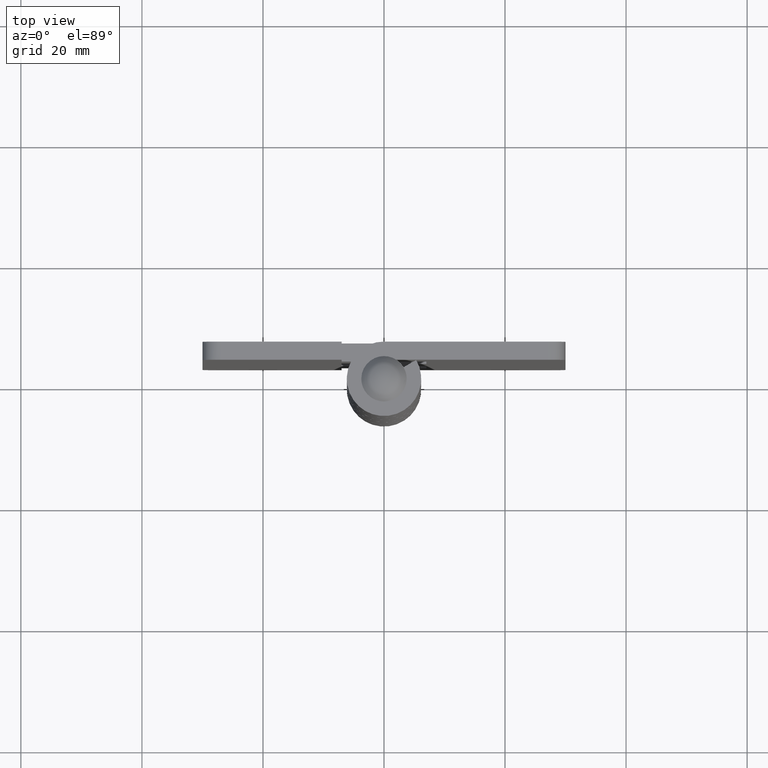
[diagram: clean part render]
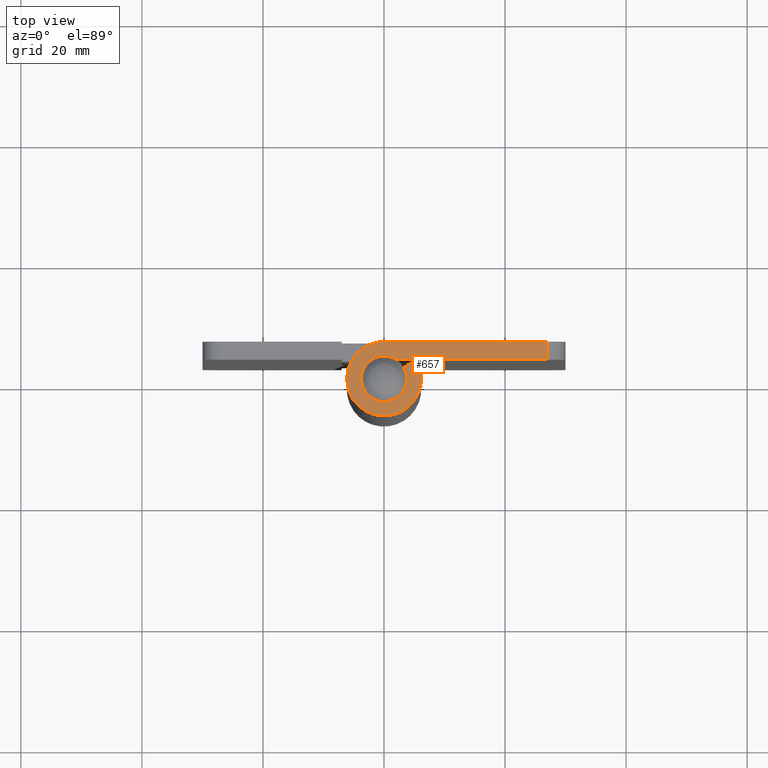
[diagram: same view with one face highlighted and labeled with its STEP entity id]
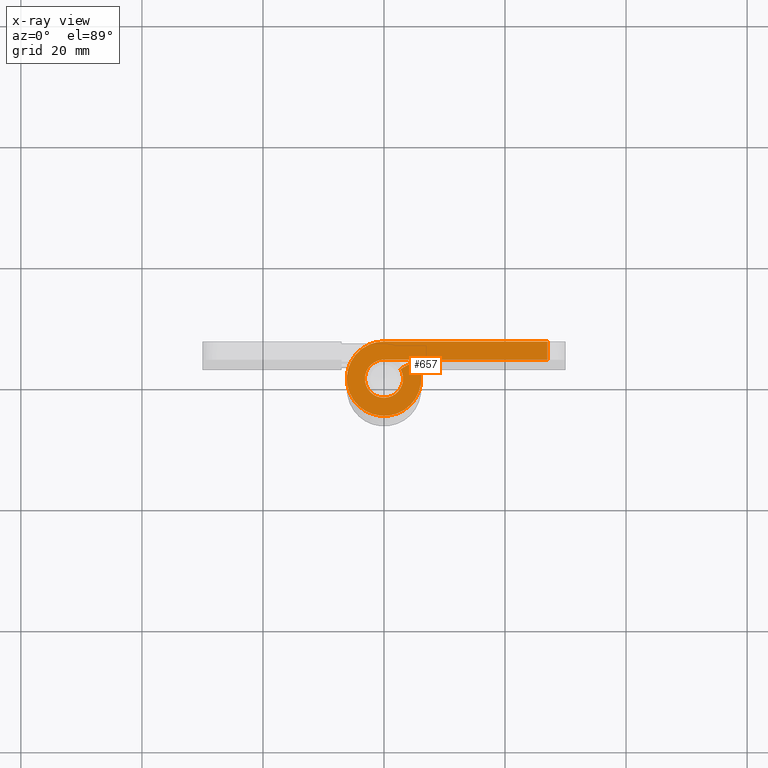
[diagram: x-ray of the same camera — body ghosted, the highlighted face saturated]
A machine part, top view. The second image highlights one B-rep face of the part: STEP entity #657.
The next image is the same camera in x-ray: the body ghosted, the highlighted face saturated — about 0% of this face is hidden behind the body in this view.
In plain terms, the highlighted face is a freeform B-spline surface patch.
Its self-contained STEP definition (entity closure, byte-faithful):
#58=CARTESIAN_POINT('',(27.0,6.150000000000000,100.0));
#59=VERTEX_POINT('',#58);
#75=CARTESIAN_POINT('',(27.0,3.150000000000000,100.0));
#76=VERTEX_POINT('',#75);
#77=CARTESIAN_POINT('',(27.0,3.150000000000000,100.0));
#78=CARTESIAN_POINT('',(27.0,6.150000000000000,100.0));
#79=QUASI_UNIFORM_CURVE('',1,(#77,#78),.UNSPECIFIED.,.F.,.U.);
#80=EDGE_CURVE('',#76,#59,#79,.T.);
#588=CARTESIAN_POINT('',(-7.805836071945194,-6.764359551898273,100.0));
#589=CARTESIAN_POINT('',(28.655843022151359,-6.764359551898273,100.0));
#590=CARTESIAN_POINT('',(-7.805836071945194,6.764384096545254,100.0));
#591=CARTESIAN_POINT('',(28.655843022151359,6.764384096545254,100.0));
#592=B_SPLINE_SURFACE_WITH_KNOTS('',1,1,((#588,#590),(#589,#591)),.UNSPECIFIED.,.F.,.F.,.U.,(2,2),(2,2),(0.0,36.461679094096553),(0.0,13.528743648443530),.UNSPECIFIED.);
#593=CARTESIAN_POINT('',(0.0,3.150000000000000,100.0));
#594=VERTEX_POINT('',#593);
#595=CARTESIAN_POINT('',(27.0,3.150000000000000,100.0));
#596=CARTESIAN_POINT('',(0.0,3.150000000000000,100.0));
#597=QUASI_UNIFORM_CURVE('',1,(#595,#596),.UNSPECIFIED.,.F.,.U.);
#598=EDGE_CURVE('',#76,#594,#597,.T.);
#599=ORIENTED_EDGE('',*,*,#598,.F.);
#600=ORIENTED_EDGE('',*,*,#80,.T.);
#601=CARTESIAN_POINT('',(-1.129699E-015,6.150000000000000,100.0));
#602=VERTEX_POINT('',#601);
#603=CARTESIAN_POINT('',(-1.129699E-015,6.150000000000000,100.0));
#604=CARTESIAN_POINT('',(27.0,6.150000000000000,100.0));
#605=QUASI_UNIFORM_CURVE('',1,(#603,#604),.UNSPECIFIED.,.F.,.U.);
#606=EDGE_CURVE('',#602,#59,#605,.T.);
#607=ORIENTED_EDGE('',*,*,#606,.F.);
#608=CARTESIAN_POINT('',(5.311544031635240,3.100000000000000,100.0));
#609=VERTEX_POINT('',#608);
#610=CARTESIAN_POINT('',(5.311544031635243,3.100000000000005,100.0));
#611=CARTESIAN_POINT('',(7.693152769405606,-0.980651508643380,100.0));
#612=CARTESIAN_POINT('',(4.364009819617648,-4.333349546745652,100.0));
#613=CARTESIAN_POINT('',(1.034866869829693,-7.686047584847921,100.0));
#614=CARTESIAN_POINT('',(-3.062474489689663,-5.333268228769301,100.0));
#615=CARTESIAN_POINT('',(-7.159815849209024,-2.980488872690681,100.0));
#616=CARTESIAN_POINT('',(-5.942310140296080,1.584755563654659,100.0));
#617=CARTESIAN_POINT('',(-4.724804431383133,6.150000000000000,100.0));
#618=CARTESIAN_POINT('',(0.0,6.150000000000000,100.0));
#626=(BOUNDED_CURVE()B_SPLINE_CURVE(2,(#610,#611,#612,#613,#614,#615,#616,#617,#618),.UNSPECIFIED.,.F.,.U.)B_SPLINE_CURVE_WITH_KNOTS((3,2,2,2,3),(0.0,0.250000000000000,0.500000000000000,0.750000000000000,1.0),.UNSPECIFIED.)CURVE()GEOMETRIC_REPRESENTATION_ITEM()RATIONAL_B_SPLINE_CURVE((1.0,0.792995533243587,1.0,0.792995533243587,1.0,0.792995533243587,1.0,0.792995533243587,1.0))REPRESENTATION_ITEM(''));
#627=EDGE_CURVE('',#609,#602,#626,.T.);
#628=ORIENTED_EDGE('',*,*,#627,.F.);
#629=CARTESIAN_POINT('',(2.720546943032690,1.587804878048790,100.0));
#630=VERTEX_POINT('',#629);
#631=CARTESIAN_POINT('',(2.720546943032690,1.587804878048790,100.0));
#632=CARTESIAN_POINT('',(5.311544031635240,3.100000000000000,100.0));
#633=QUASI_UNIFORM_CURVE('',1,(#631,#632),.UNSPECIFIED.,.F.,.U.);
#634=EDGE_CURVE('',#630,#609,#633,.T.);
#635=ORIENTED_EDGE('',*,*,#634,.F.);
#636=CARTESIAN_POINT('',(2.720546943032683,1.587804878048788,100.0));
#637=CARTESIAN_POINT('',(3.940395320915068,-0.502284919061237,100.0));
#638=CARTESIAN_POINT('',(2.235224541755385,-2.219520499552647,100.0));
#639=CARTESIAN_POINT('',(0.530053762595700,-3.936756080044059,100.0));
#640=CARTESIAN_POINT('',(-1.568584494719096,-2.731673970833057,100.0));
#641=CARTESIAN_POINT('',(-3.667222752033890,-1.526591861622056,100.0));
#642=CARTESIAN_POINT('',(-3.043622266980918,0.811704069188972,100.0));
#643=CARTESIAN_POINT('',(-2.420021781927947,3.150000000000000,100.0));
#644=CARTESIAN_POINT('',(0.0,3.150000000000000,100.0));
#652=(BOUNDED_CURVE()B_SPLINE_CURVE(2,(#636,#637,#638,#639,#640,#641,#642,#643,#644),.UNSPECIFIED.,.F.,.U.)B_SPLINE_CURVE_WITH_KNOTS((3,2,2,2,3),(0.0,0.250000000000000,0.500000000000000,0.750000000000000,1.0),.UNSPECIFIED.)CURVE()GEOMETRIC_REPRESENTATION_ITEM()RATIONAL_B_SPLINE_CURVE((1.0,0.792995533243588,1.0,0.792995533243588,1.0,0.792995533243588,1.0,0.792995533243588,1.0))REPRESENTATION_ITEM(''));
#653=EDGE_CURVE('',#630,#594,#652,.T.);
#654=ORIENTED_EDGE('',*,*,#653,.T.);
#655=EDGE_LOOP('',(#599,#600,#607,#628,#635,#654));
#656=FACE_OUTER_BOUND('',#655,.T.);
#657=ADVANCED_FACE('',(#656),#592,.T.);